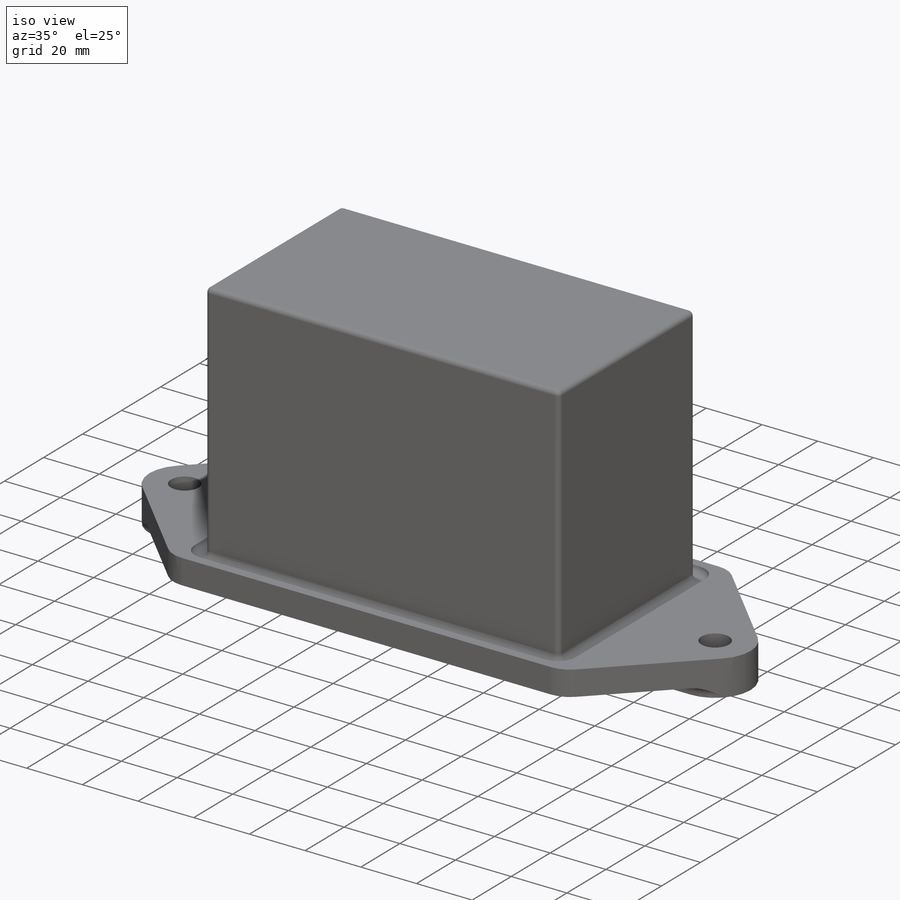
[diagram: iso view]
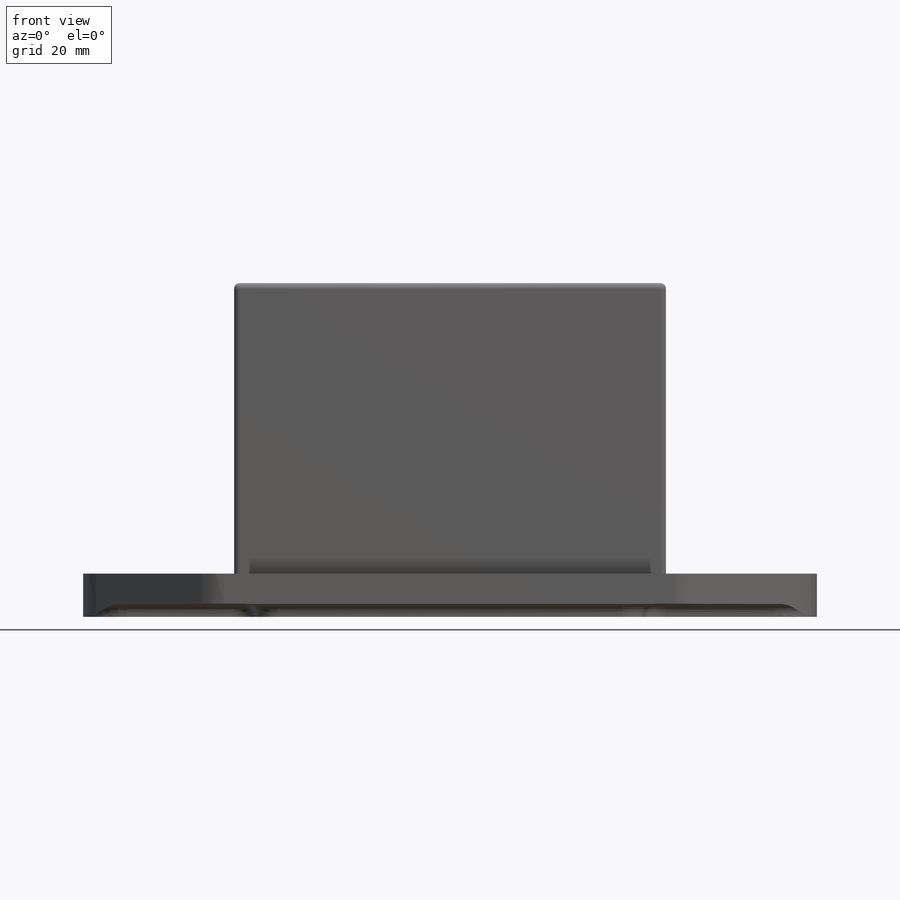
[diagram: front view]
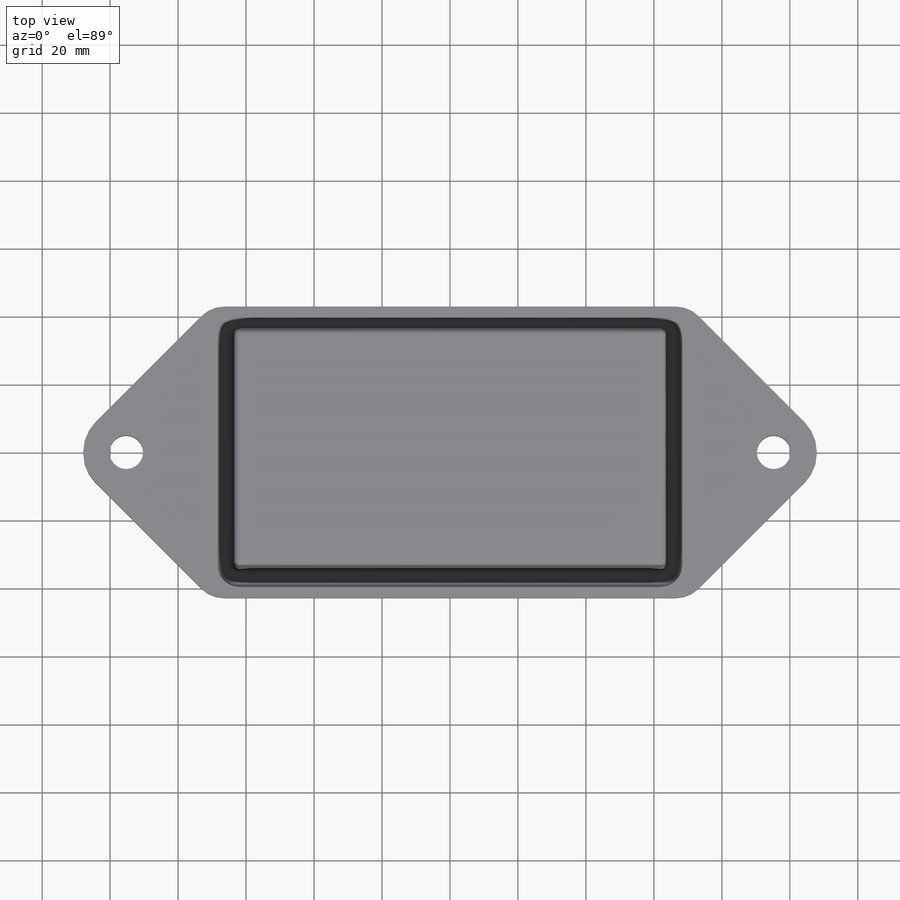
[diagram: top view]
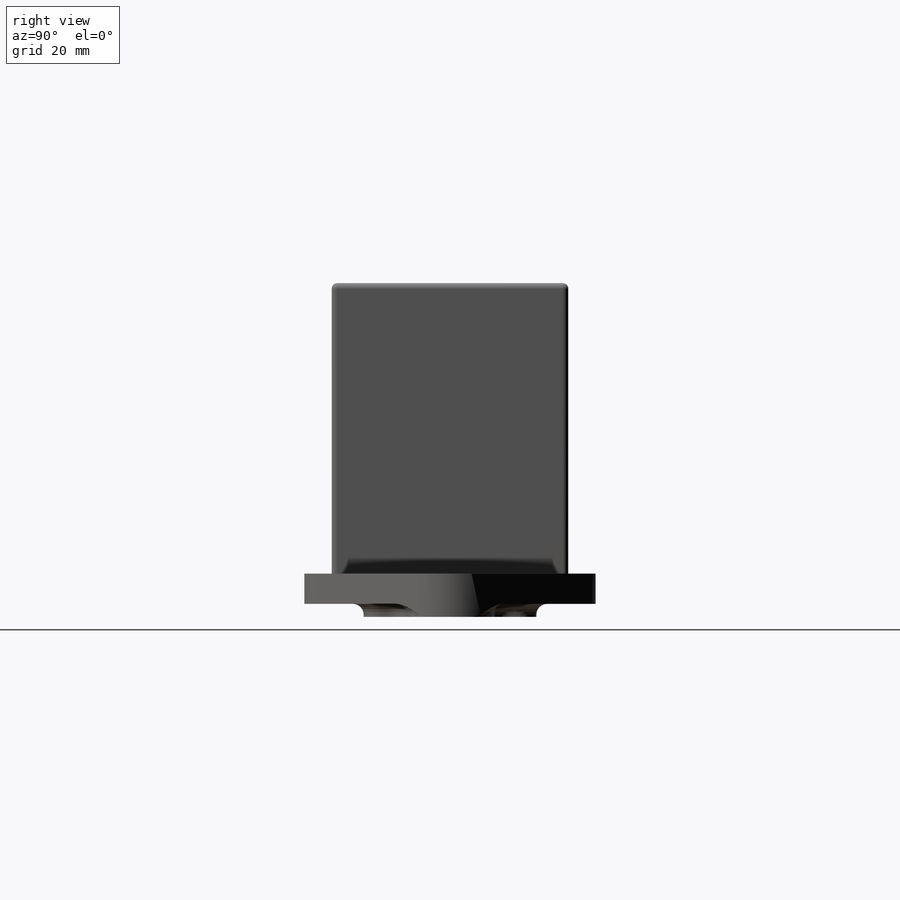
[diagram: right view]
SOLIDWORKS PART (.sldprt)
format: sldprt  version: not decoded by parser v0  size: 1,114,624 bytes
history: native  units: mm
features: sketch x7, fillet x4, extrude x3, material x1, cut_extrude x1, hole x1 (+12 scaffold rows collapsed)
feature tree (29):
  scaffold x12  (default folders/planes/origin — collapsed)
  material  "Material <not specified>"
  sketch  "Sketch2"
  sketch  "param"  dims[c1.D2=12.7mm c1.D3=9.525mm c1.D4=12.7mm c1.D1=85.725mm c2.D4=215.9mm c2.D5=~38.310431mm c3.D5=45.0deg c3.D6=~38.310431mm c4.D6=45.0deg]
  extrude  "Extrude1"  Depth=8.89mm
  sketch  "Sketch3"  dims[D1=12.7mm D2=190.5mm D3=114.3mm D4=50.8mm]
  extrude  "Extrude2"  Depth=3.81mm
  fillet  "Fillet 1/4"  Radius=6.35mm
  fillet  "Fillet 1/8"  Radius=3.175mm
  sketch  "Sketch6"  dims[D4=1.524mm D5=6.35mm D1=79.248mm D2=136.652mm D3=4.826mm]
  cut_extrude  "Cut-Extrude1"  Depth=2.286mm
  fillet  "Fillet 095"  Radius=2.413mm
  hole  "25/64 (0.39063) Diameter Hole1"  Diameter=9.92124mm Depth=12.770004mm
  sketch  "Sketch11"  dims[D1=95.25mm D2=190.5mm]
  sketch  "Sketch10"  dims[hole-wizard template sketch: 59 standard entries collapsed; hole parameters kept: c18.Thru Hole Dia.=~9.92124mm c18.Thru Hole Depth=~12.770004mm]
  sketch  "Sketch12"
  extrude  "Extrude3"  Depth=85.471mm
  fillet  "Fillet1"  Radius=1.5875mm
decode coverage: 14 of 16 modeling features carry decoded parameters
note: ~ marks probable driven/reference dimensions
note: suppression state not decoded; provenance and decode notes live in map.json
